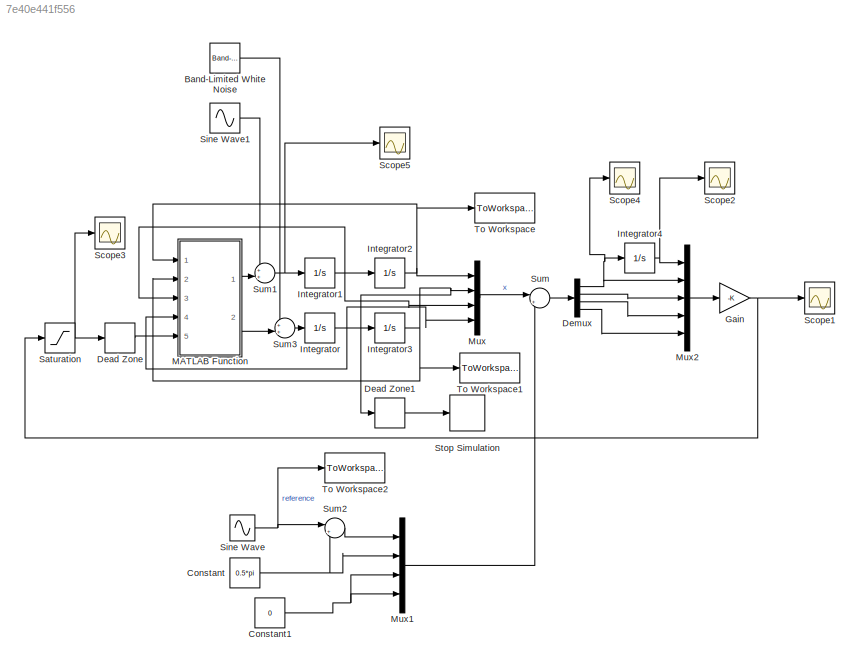
MODEL slx_7e40e441f556
KIND model
CONFIG AbsTol = auto
CONFIG EnableMultiTasking = on
CONFIG FixedStep = h
CONFIG MaxStep = auto
CONFIG MinStep = auto
CONFIG RelTol = 1e-3
CONFIG SampleTimeConstraint = Unconstrained
CONFIG Solver = FixedStepAuto
CONFIG SolverName = FixedStepAuto
CONFIG StartTime = 0.0
CONFIG StopTime = 200
BLOCK [Reference] Band-Limited White Noise  REF=simulink/Sources/Band-Limited
White Noise
  Ports = [0, 1]
  SourceBlock = simulink/Sources/Band-Limited\nWhite Noise
  SourceProductBaseCode = SL
  SourceProductName = Simulink
  SourceType = Band-Limited White Noise.
BLOCK [Constant] Constant
  Value = 0.5*pi
BLOCK [Constant] Constant1
  Value = 0
BLOCK [DeadZone] Dead Zone
  LowerValue = -0.3
  UpperValue = 0.3
BLOCK [DeadZone] Dead Zone1
  LowerValue = 0
  UpperValue = pi
BLOCK [Demux] Demux
  DisplayOption = bar
  Ports = [1, 4]
BLOCK [Gain] Gain
  Gain = -K
  Multiplication = Matrix(K*u)
  OutDataTypeStr = Inherit: Inherit via internal rule
  ParamDataTypeStr = Inherit: Inherit via internal rule
  SaturateOnIntegerOverflow = off
BLOCK [Integrator] Integrator
  InitialCondition = x0(4)
  Ports = [1, 1]
BLOCK [Integrator] Integrator1
  InitialCondition = x0(3)
  Ports = [1, 1]
BLOCK [Integrator] Integrator2
  InitialCondition = x0(1)
  Ports = [1, 1]
  WrapState = on
BLOCK [Integrator] Integrator3
  InitialCondition = x0(2)
  Ports = [1, 1]
  WrapState = on
BLOCK [Integrator] Integrator4
  LimitOutput = on
  LowerSaturationLimit = -2
  Ports = [1, 1]
  UpperSaturationLimit = 2
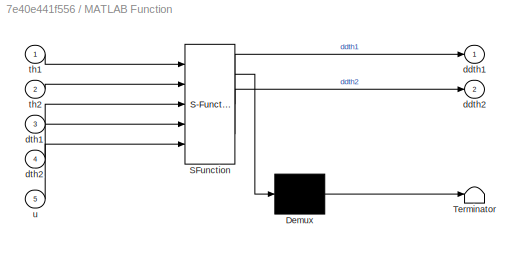
BLOCK [SubSystem] MATLAB Function
  ErrorFcn = Stateflow.Translate.translate
  PermitHierarchicalResolution = ExplicitOnly
  Ports = [5, 2]
  RequestExecContextInheritance = off
  SFBlockType = MATLAB Function
  TreatAsAtomicUnit = on
  Variant = off
BLOCK [Demux] MATLAB Function/ Demux 
  Outputs = 1
  Ports = [1, 1]
BLOCK [S-Function] MATLAB Function/ SFunction 
  EnableBusSupport = on
  FunctionName = sf_sfun
  PortCounts = [5 3]
  Ports = [5, 3]
  SFcnIsStateOwnerBlock = off
  SFunctionDeploymentMode = off
  Tag = Stateflow S-Function pendubotSim 2
BLOCK [Terminator] MATLAB Function/ Terminator 
BLOCK [Outport] MATLAB Function/ddth1
  IconDisplay = Port number
BLOCK [Outport] MATLAB Function/ddth2
  IconDisplay = Port number
  Port = 2
BLOCK [Inport] MATLAB Function/dth1
  IconDisplay = Port number
  Port = 3
BLOCK [Inport] MATLAB Function/dth2
  IconDisplay = Port number
  Port = 4
BLOCK [Inport] MATLAB Function/th1
  IconDisplay = Port number
BLOCK [Inport] MATLAB Function/th2
  IconDisplay = Port number
  Port = 2
BLOCK [Inport] MATLAB Function/u
  IconDisplay = Port number
  Port = 5
BLOCK [Mux] Mux
  DisplayOption = bar
  Ports = [4, 1]
BLOCK [Mux] Mux1
  DisplayOption = bar
  Ports = [4, 1]
BLOCK [Mux] Mux2
  DisplayOption = bar
  Inputs = 5
  Ports = [5, 1]
BLOCK [Saturate] Saturation
  InputPortMap = u0
  LowerLimit = -1
  Ports = [1, 1]
  UpperLimit = 1
BLOCK [Scope] Scope1
  NumInputPorts = 1
  Ports = [1]
  ScopeSpecificationString = Simulink.scopes.TimeScopeBlockCfg('CurrentConfiguration', extmgr.ConfigurationSet(extmgr.Configuration('Core','General UI',true),extmgr.Configuration('Core','Source UI',true),extmgr.Configuration('Sources','WiredSimulink',true,'DataLoggingVariableName','ScopeData1'),extmgr.Configuration('Visuals','Time Domain',true,'SerializedDisplays',{struct('MinYLimReal','-20.70689','MaxYLimReal','9.492','YLabe...<+1461ch>
BLOCK [Scope] Scope2
  NumInputPorts = 1
  Ports = [1]
  ScopeSpecificationString = Simulink.scopes.TimeScopeBlockCfg('CurrentConfiguration', extmgr.ConfigurationSet(extmgr.Configuration('Core','General UI',true),extmgr.Configuration('Core','Source UI',true),extmgr.Configuration('Sources','WiredSimulink',true,'DataLoggingVariableName','ScopeData1'),extmgr.Configuration('Visuals','Time Domain',true,'SerializedDisplays',{struct('MinYLimReal','-0.98673','MaxYLimReal','0.59236','YLab...<+1468ch>
BLOCK [Scope] Scope3
  NumInputPorts = 1
  Ports = [1]
  ScopeSpecificationString = Simulink.scopes.TimeScopeBlockCfg('CurrentConfiguration', extmgr.ConfigurationSet(extmgr.Configuration('Core','General UI',true),extmgr.Configuration('Core','Source UI',true),extmgr.Configuration('Sources','WiredSimulink',true,'DataLoggingVariableName','ScopeData2'),extmgr.Configuration('Visuals','Time Domain',true,'SerializedDisplays',{struct('MinYLimReal','-1.25','MaxYLimReal','1.25','YLabelReal...<+1449ch>
BLOCK [Scope] Scope4
  NumInputPorts = 1
  Ports = [1]
  ScopeSpecificationString = Simulink.scopes.TimeScopeBlockCfg('CurrentConfiguration', extmgr.ConfigurationSet(extmgr.Configuration('Core','General UI',true),extmgr.Configuration('Core','Source UI',true),extmgr.Configuration('Sources','WiredSimulink',true,'DataLoggingVariableName','ScopeData2'),extmgr.Configuration('Visuals','Time Domain',true,'SerializedDisplays',{struct('MinYLimReal','-1.21158','MaxYLimReal','0.33048','YLab...<+1464ch>
BLOCK [Scope] Scope5
  NumInputPorts = 1
  Ports = [1]
  ScopeSpecificationString = Simulink.scopes.TimeScopeBlockCfg('CurrentConfiguration', extmgr.ConfigurationSet(extmgr.Configuration('Core','General UI',true),extmgr.Configuration('Core','Source UI',true),extmgr.Configuration('Sources','WiredSimulink',true,'DataLoggingVariableName','ScopeData4'),extmgr.Configuration('Visuals','Time Domain',true,'SerializedDisplays',{struct('MinYLimReal','-57.47428','MaxYLimReal','62.37967','YL...<+1467ch>
BLOCK [Sin] Sine Wave
  Amplitude = 0*pi
  Frequency = 0.1
  Ports = [0, 1]
  SampleTime = 0
BLOCK [Sin] Sine Wave1
  Amplitude = 5
  Frequency = 10
  Ports = [0, 1]
  SampleTime = 0
BLOCK [Stop] Stop Simulation
BLOCK [Sum] Sum
  IconShape = round
  InputSameDT = off
  Inputs = |+-
  OutDataTypeStr = Inherit: Inherit via internal rule
  Ports = [2, 1]
  SaturateOnIntegerOverflow = off
BLOCK [Sum] Sum1
  IconShape = round
  InputSameDT = off
  Inputs = ++|
  OutDataTypeStr = Inherit: Inherit via internal rule
  Ports = [2, 1]
  SaturateOnIntegerOverflow = off
BLOCK [Sum] Sum2
  IconShape = round
  InputSameDT = off
  Inputs = |++
  OutDataTypeStr = Inherit: Inherit via internal rule
  Ports = [2, 1]
  SaturateOnIntegerOverflow = off
BLOCK [Sum] Sum3
  IconShape = round
  InputSameDT = off
  Inputs = ++|
  OutDataTypeStr = Inherit: Inherit via internal rule
  Ports = [2, 1]
  SaturateOnIntegerOverflow = off
BLOCK [ToWorkspace] To Workspace
  FixptAsFi = on
  MaxDataPoints = inf
  Ports = [1]
  SampleTime = -1
  Save2DSignal = 3-D array (concatenate along third dimension)
  VariableName = th1Sim
BLOCK [ToWorkspace] To Workspace1
  FixptAsFi = on
  MaxDataPoints = inf
  Ports = [1]
  SampleTime = -1
  Save2DSignal = 3-D array (concatenate along third dimension)
  VariableName = th2Sim
BLOCK [ToWorkspace] To Workspace2
  FixptAsFi = on
  MaxDataPoints = inf
  Ports = [1]
  SampleTime = -1
  Save2DSignal = 3-D array (concatenate along third dimension)
  VariableName = th1refSim
LINE Band-Limited White Noise:1 -> Sum3:1
NET Constant1:1 -> Mux1:3, Mux1:4
NET Constant:1 -> Mux1:2, Sum2:2
LINE Dead Zone1:1 -> Stop Simulation:1
LINE Dead Zone:1 -> MATLAB Function:5
NET Demux:1 -> Integrator4:1, Mux2:2, Scope4:1
LINE Demux:2 -> Mux2:3
LINE Demux:3 -> Mux2:4
LINE Demux:4 -> Mux2:5
NET Gain:1 -> Saturation:1, Scope1:1
NET Integrator1:1 -> Integrator2:1, MATLAB Function:3, Mux:3
NET Integrator2:1 -> MATLAB Function:1, Mux:1, To Workspace:1
NET Integrator3:1 -> Dead Zone1:1, MATLAB Function:2, Mux:2, To Workspace1:1
NET Integrator4:1 -> Mux2:1, Scope2:1
NET Integrator:1 -> Integrator3:1, MATLAB Function:4, Mux:4
LINE MATLAB Function:1 -> Sum1:2
LINE MATLAB Function:2 -> Sum3:2
LINE Mux1:1 -> Sum:2
LINE Mux2:1 -> Gain:1
LINE Mux:1 -> Sum:1
NET Saturation:1 -> Dead Zone:1, Scope3:1
LINE Sine Wave1:1 -> Sum1:1
NET Sine Wave:1 -> Sum2:1, To Workspace2:1
NET Sum1:1 -> Integrator1:1, Scope5:1
LINE Sum2:1 -> Mux1:1
LINE Sum3:1 -> Integrator:1
LINE Sum:1 -> Demux:1
note: NET lines group one-source signal fan-out (src -> all destinations, sorted); 1:1 wires keep LINE
CHART MATLAB Function states=1 transitions=1
  STATE_LABEL 'eML_blk_kernel()'
  STATE_LABEL "SCRIPT:\nfunction [ddth1,ddth2] = pendubot(th1,th2,dth1,dth2,u)\n%INPUT\n% time(t), x(th1,th2,dth1,dth2)\n%OUTPUT\n% second time-derivative of theta_1(ddth1) and theta_2(ddth2)\n\n% Set params\nl1 = 0.1;\ng = 9.806; \n\nm1 = 0.18;\nm2 = 0.06;\n\nc1 = 0.06;\nc2 = 0.045;\nJ1 = 0.037;\nJ2 = 0.00011; \n\nK = 1.8;\nk1 = 0.35;\nk2 = 0.00001;\n\n% Set equ's\ng11 = m1*c1^2+m2*l1^2+J1;\ng21 = m2*l1*c2*cos(th1-th2);\ng12 = m2*l1*c2*...<+691ch>"
